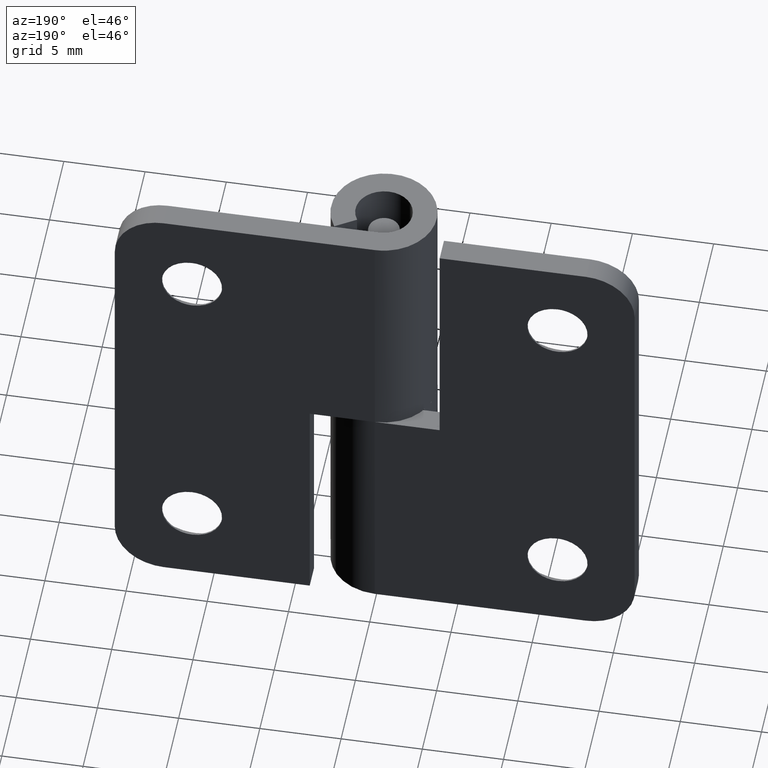
[diagram: clean part render]
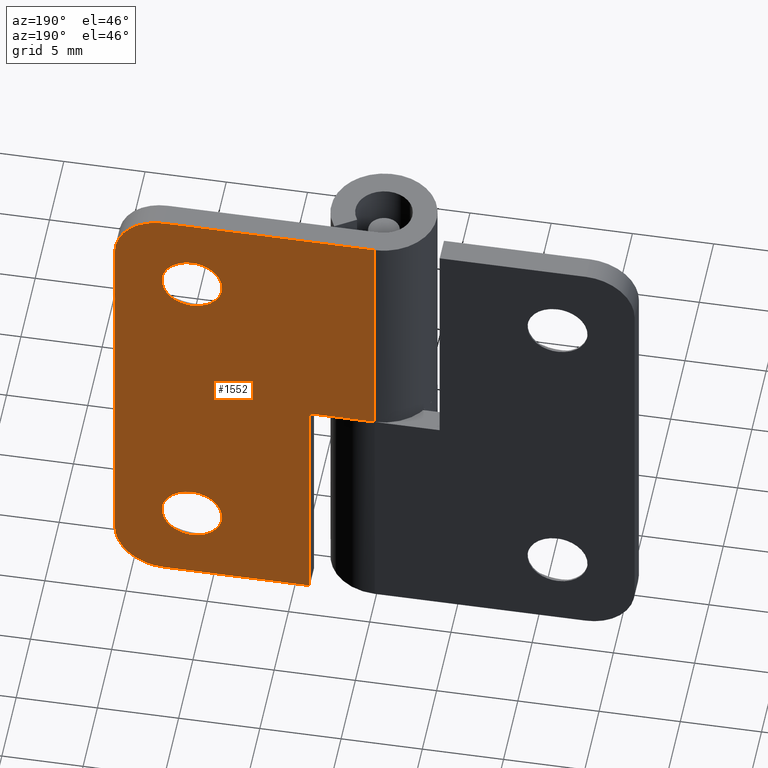
[diagram: same view with one face highlighted and labeled with its STEP entity id]
A machine part, auxiliary view. The second image highlights one B-rep face of the part: STEP entity #1552.
In plain terms, the highlighted face is a freeform B-spline surface patch.
Its self-contained STEP definition (entity closure, byte-faithful):
#472=CARTESIAN_POINT('',(13.087918004682640,3.250000000000000,24.788921742599229));
#473=VERTEX_POINT('',#472);
#479=CARTESIAN_POINT('',(11.250000000000000,3.250000000000000,23.150007999999801));
#480=VERTEX_POINT('',#479);
#481=CARTESIAN_POINT('',(13.087918004682642,3.250000000000000,24.788921742599232));
#482=CARTESIAN_POINT('',(12.899687510651761,3.250000000000000,23.150007999999804));
#483=CARTESIAN_POINT('',(11.250000000000000,3.250000000000000,23.150007999999801));
#491=(BOUNDED_CURVE()B_SPLINE_CURVE(2,(#481,#482,#483),.UNSPECIFIED.,.F.,.U.)B_SPLINE_CURVE_WITH_KNOTS((3,3),(0.269767760965133,0.500000000000000),.UNSPECIFIED.)CURVE()GEOMETRIC_REPRESENTATION_ITEM()RATIONAL_B_SPLINE_CURVE((0.957343726423063,0.730266153737798,1.0))REPRESENTATION_ITEM(''));
#492=EDGE_CURVE('',#473,#480,#491,.T.);
#494=CARTESIAN_POINT('',(9.403450622956065,3.250000000000000,24.887068201263229));
#495=VERTEX_POINT('',#494);
#496=CARTESIAN_POINT('',(11.250000000000000,3.250000000000000,23.150007999999801));
#497=CARTESIAN_POINT('',(9.509693777352041,3.250000000000000,23.150007999999804));
#498=CARTESIAN_POINT('',(9.403450622956065,3.249999999999999,24.887068201263226));
#506=(BOUNDED_CURVE()B_SPLINE_CURVE(2,(#496,#497,#498),.UNSPECIFIED.,.F.,.U.)B_SPLINE_CURVE_WITH_KNOTS((3,3),(0.500000000000000,0.739332962130381),.UNSPECIFIED.)CURVE()GEOMETRIC_REPRESENTATION_ITEM()RATIONAL_B_SPLINE_CURVE((1.0,0.719603993413899,0.976072041434048))REPRESENTATION_ITEM(''));
#507=EDGE_CURVE('',#480,#495,#506,.T.);
#606=CARTESIAN_POINT('',(11.250000000000000,3.250000000000000,26.850007999999800));
#607=VERTEX_POINT('',#606);
#608=CARTESIAN_POINT('',(9.403450622956065,3.250000000000000,24.887068201263226));
#609=CARTESIAN_POINT('',(9.399999999999999,3.250000000000000,24.943485387298654));
#610=CARTESIAN_POINT('',(9.399999999999999,3.250000000000000,25.000007999999799));
#611=CARTESIAN_POINT('',(9.400000000000000,3.250000000000000,26.850007999999800));
#612=CARTESIAN_POINT('',(11.250000000000000,3.250000000000000,26.850007999999800));
#620=(BOUNDED_CURVE()B_SPLINE_CURVE(2,(#608,#609,#610,#611,#612),.UNSPECIFIED.,.F.,.U.)B_SPLINE_CURVE_WITH_KNOTS((3,2,3),(0.739332962130382,0.750000000000000,1.0),.UNSPECIFIED.)CURVE()GEOMETRIC_REPRESENTATION_ITEM()RATIONAL_B_SPLINE_CURVE((0.976072041434050,0.987502787772650,1.0,0.707106781186548,1.0))REPRESENTATION_ITEM(''));
#621=EDGE_CURVE('',#495,#607,#620,.T.);
#623=CARTESIAN_POINT('',(11.250000000000000,3.250000000000000,26.850007999999800));
#624=CARTESIAN_POINT('',(13.100000000000001,3.250000000000000,26.850007999999800));
#625=CARTESIAN_POINT('',(13.100000000000000,3.250000000000000,25.000007999999799));
#626=CARTESIAN_POINT('',(13.100000000000005,3.250000000000000,24.894119087299348));
#627=CARTESIAN_POINT('',(13.087918004682642,3.250000000000000,24.788921742599232));
#635=(BOUNDED_CURVE()B_SPLINE_CURVE(2,(#623,#624,#625,#626,#627),.UNSPECIFIED.,.F.,.U.)B_SPLINE_CURVE_WITH_KNOTS((3,2,3),(0.0,0.250000000000000,0.269767760965133),.UNSPECIFIED.)CURVE()GEOMETRIC_REPRESENTATION_ITEM()RATIONAL_B_SPLINE_CURVE((1.0,0.707106781186548,1.0,0.976840627448749,0.957343726423063))REPRESENTATION_ITEM(''));
#636=EDGE_CURVE('',#607,#473,#635,.T.);
#804=CARTESIAN_POINT('',(13.087918004682640,3.250000000000000,4.788913742599432));
#805=VERTEX_POINT('',#804);
#811=CARTESIAN_POINT('',(11.250000000000000,3.250000000000000,3.150000000000000));
#812=VERTEX_POINT('',#811);
#813=CARTESIAN_POINT('',(13.087918004682646,3.250000000000000,4.788913742599433));
#814=CARTESIAN_POINT('',(12.899687510651759,3.250000000000000,3.150000000000000));
#815=CARTESIAN_POINT('',(11.250000000000000,3.250000000000000,3.150000000000000));
#823=(BOUNDED_CURVE()B_SPLINE_CURVE(2,(#813,#814,#815),.UNSPECIFIED.,.F.,.U.)B_SPLINE_CURVE_WITH_KNOTS((3,3),(0.269767760965133,0.500000000000000),.UNSPECIFIED.)CURVE()GEOMETRIC_REPRESENTATION_ITEM()RATIONAL_B_SPLINE_CURVE((0.957343726423063,0.730266153737799,1.0))REPRESENTATION_ITEM(''));
#824=EDGE_CURVE('',#805,#812,#823,.T.);
#826=CARTESIAN_POINT('',(9.403450622956065,3.250000000000000,4.887060201263431));
#827=VERTEX_POINT('',#826);
#828=CARTESIAN_POINT('',(11.250000000000000,3.250000000000000,3.150000000000000));
#829=CARTESIAN_POINT('',(9.509693777352041,3.250000000000000,3.149999999999999));
#830=CARTESIAN_POINT('',(9.403450622956065,3.249999999999999,4.887060201263431));
#838=(BOUNDED_CURVE()B_SPLINE_CURVE(2,(#828,#829,#830),.UNSPECIFIED.,.F.,.U.)B_SPLINE_CURVE_WITH_KNOTS((3,3),(0.500000000000000,0.739332962130381),.UNSPECIFIED.)CURVE()GEOMETRIC_REPRESENTATION_ITEM()RATIONAL_B_SPLINE_CURVE((1.0,0.719603993413899,0.976072041434048))REPRESENTATION_ITEM(''));
#839=EDGE_CURVE('',#812,#827,#838,.T.);
#938=CARTESIAN_POINT('',(11.250000000000000,3.250000000000000,6.850000000000001));
#939=VERTEX_POINT('',#938);
#940=CARTESIAN_POINT('',(9.403450622956065,3.250000000000000,4.887060201263431));
#941=CARTESIAN_POINT('',(9.399999999999999,3.250000000000000,4.943477387298851));
#942=CARTESIAN_POINT('',(9.399999999999999,3.250000000000000,5.0));
#943=CARTESIAN_POINT('',(9.400000000000000,3.250000000000000,6.850000000000001));
#944=CARTESIAN_POINT('',(11.250000000000000,3.250000000000000,6.850000000000001));
#952=(BOUNDED_CURVE()B_SPLINE_CURVE(2,(#940,#941,#942,#943,#944),.UNSPECIFIED.,.F.,.U.)B_SPLINE_CURVE_WITH_KNOTS((3,2,3),(0.739332962130382,0.750000000000000,1.0),.UNSPECIFIED.)CURVE()GEOMETRIC_REPRESENTATION_ITEM()RATIONAL_B_SPLINE_CURVE((0.976072041434051,0.987502787772650,1.0,0.707106781186548,1.0))REPRESENTATION_ITEM(''));
#953=EDGE_CURVE('',#827,#939,#952,.T.);
#955=CARTESIAN_POINT('',(11.250000000000000,3.250000000000000,6.850000000000001));
#956=CARTESIAN_POINT('',(13.100000000000001,3.250000000000000,6.850000000000001));
#957=CARTESIAN_POINT('',(13.100000000000000,3.250000000000000,5.0));
#958=CARTESIAN_POINT('',(13.099999999999994,3.250000000000000,4.894111087299554));
#959=CARTESIAN_POINT('',(13.087918004682642,3.250000000000000,4.788913742599432));
#967=(BOUNDED_CURVE()B_SPLINE_CURVE(2,(#955,#956,#957,#958,#959),.UNSPECIFIED.,.F.,.U.)B_SPLINE_CURVE_WITH_KNOTS((3,2,3),(0.0,0.250000000000000,0.269767760965133),.UNSPECIFIED.)CURVE()GEOMETRIC_REPRESENTATION_ITEM()RATIONAL_B_SPLINE_CURVE((1.0,0.707106781186548,1.0,0.976840627448749,0.957343726423063))REPRESENTATION_ITEM(''));
#968=EDGE_CURVE('',#939,#805,#967,.T.);
#1115=CARTESIAN_POINT('',(3.999999999999885,3.250000000000000,15.0));
#1116=VERTEX_POINT('',#1115);
#1122=CARTESIAN_POINT('',(3.999999999999885,3.250000000000000,0.0));
#1123=VERTEX_POINT('',#1122);
#1124=CARTESIAN_POINT('',(3.999999999999885,3.250000000000000,0.0));
#1125=CARTESIAN_POINT('',(3.999999999999885,3.250000000000000,15.0));
#1126=QUASI_UNIFORM_CURVE('',1,(#1124,#1125),.UNSPECIFIED.,.F.,.U.);
#1127=EDGE_CURVE('',#1123,#1116,#1126,.T.);
#1177=CARTESIAN_POINT('',(0.0,3.250000000000000,15.0));
#1178=VERTEX_POINT('',#1177);
#1198=CARTESIAN_POINT('',(3.999999999999885,3.250000000000000,15.0));
#1199=CARTESIAN_POINT('',(0.0,3.250000000000000,15.0));
#1200=QUASI_UNIFORM_CURVE('',1,(#1198,#1199),.UNSPECIFIED.,.F.,.U.);
#1201=EDGE_CURVE('',#1116,#1178,#1200,.T.);
#1238=CARTESIAN_POINT('',(16.0,3.250000000000000,27.000008000000001));
#1239=VERTEX_POINT('',#1238);
#1245=CARTESIAN_POINT('',(13.0,3.250000000000000,30.000008000000001));
#1246=VERTEX_POINT('',#1245);
#1247=CARTESIAN_POINT('',(16.0,3.250000000000000,27.000008000000001));
#1248=CARTESIAN_POINT('',(15.999999999999998,3.250000000000000,30.000008000000005));
#1249=CARTESIAN_POINT('',(13.0,3.250000000000000,30.000008000000001));
#1257=(BOUNDED_CURVE()B_SPLINE_CURVE(2,(#1247,#1248,#1249),.UNSPECIFIED.,.F.,.U.)CURVE()GEOMETRIC_REPRESENTATION_ITEM()QUASI_UNIFORM_CURVE()RATIONAL_B_SPLINE_CURVE((1.0,0.707106781186548,1.0))REPRESENTATION_ITEM(''));
#1258=EDGE_CURVE('',#1239,#1246,#1257,.T.);
#1299=CARTESIAN_POINT('',(13.0,3.250000000000000,0.0));
#1300=VERTEX_POINT('',#1299);
#1306=CARTESIAN_POINT('',(16.0,3.250000000000000,3.0));
#1307=VERTEX_POINT('',#1306);
#1308=CARTESIAN_POINT('',(13.0,3.250000000000000,0.0));
#1309=CARTESIAN_POINT('',(15.999999999999998,3.250000000000000,0.0));
#1310=CARTESIAN_POINT('',(16.0,3.250000000000000,3.0));
#1318=(BOUNDED_CURVE()B_SPLINE_CURVE(2,(#1308,#1309,#1310),.UNSPECIFIED.,.F.,.U.)CURVE()GEOMETRIC_REPRESENTATION_ITEM()QUASI_UNIFORM_CURVE()RATIONAL_B_SPLINE_CURVE((1.0,0.707106781186548,1.0))REPRESENTATION_ITEM(''));
#1319=EDGE_CURVE('',#1300,#1307,#1318,.T.);
#1342=CARTESIAN_POINT('',(0.0,3.250000000000000,30.000008000000001));
#1343=VERTEX_POINT('',#1342);
#1344=CARTESIAN_POINT('',(13.0,3.250000000000000,30.000008000000001));
#1345=CARTESIAN_POINT('',(0.0,3.250000000000000,30.000008000000001));
#1346=QUASI_UNIFORM_CURVE('',1,(#1344,#1345),.UNSPECIFIED.,.F.,.U.);
#1347=EDGE_CURVE('',#1246,#1343,#1346,.T.);
#1405=CARTESIAN_POINT('',(13.0,3.250000000000000,0.0));
#1406=CARTESIAN_POINT('',(3.999999999999885,3.250000000000000,0.0));
#1407=QUASI_UNIFORM_CURVE('',1,(#1405,#1406),.UNSPECIFIED.,.F.,.U.);
#1408=EDGE_CURVE('',#1300,#1123,#1407,.T.);
#1461=CARTESIAN_POINT('',(0.0,3.250000000000000,15.0));
#1462=CARTESIAN_POINT('',(0.0,3.250000000000000,30.000008000000001));
#1463=QUASI_UNIFORM_CURVE('',1,(#1461,#1462),.UNSPECIFIED.,.F.,.U.);
#1464=EDGE_CURVE('',#1178,#1343,#1463,.T.);
#1510=CARTESIAN_POINT('',(16.0,3.250000000000000,3.0));
#1511=CARTESIAN_POINT('',(16.0,3.250000000000000,27.000008000000001));
#1512=QUASI_UNIFORM_CURVE('',1,(#1510,#1511),.UNSPECIFIED.,.F.,.U.);
#1513=EDGE_CURVE('',#1307,#1239,#1512,.T.);
#1525=CARTESIAN_POINT('',(-0.799199968988895,3.250000000000000,-1.498500234273062));
#1526=CARTESIAN_POINT('',(-0.799199968988895,3.250000000000000,31.498506893168209));
#1527=CARTESIAN_POINT('',(16.799200398142339,3.250000000000000,-1.498500234273062));
#1528=CARTESIAN_POINT('',(16.799200398142339,3.250000000000000,31.498506893168209));
#1529=B_SPLINE_SURFACE_WITH_KNOTS('',1,1,((#1525,#1527),(#1526,#1528)),.UNSPECIFIED.,.F.,.F.,.U.,(2,2),(2,2),(0.0,32.997007127441272),(0.0,17.598400367131230),.UNSPECIFIED.);
#1530=ORIENTED_EDGE('',*,*,#1127,.T.);
#1531=ORIENTED_EDGE('',*,*,#1201,.T.);
#1532=ORIENTED_EDGE('',*,*,#1464,.T.);
#1533=ORIENTED_EDGE('',*,*,#1347,.F.);
#1534=ORIENTED_EDGE('',*,*,#1258,.F.);
#1535=ORIENTED_EDGE('',*,*,#1513,.F.);
#1536=ORIENTED_EDGE('',*,*,#1319,.F.);
#1537=ORIENTED_EDGE('',*,*,#1408,.T.);
#1538=EDGE_LOOP('',(#1530,#1531,#1532,#1533,#1534,#1535,#1536,#1537));
#1539=FACE_OUTER_BOUND('',#1538,.T.);
#1540=ORIENTED_EDGE('',*,*,#839,.F.);
#1541=ORIENTED_EDGE('',*,*,#824,.F.);
#1542=ORIENTED_EDGE('',*,*,#968,.F.);
#1543=ORIENTED_EDGE('',*,*,#953,.F.);
#1544=EDGE_LOOP('',(#1540,#1541,#1542,#1543));
#1545=FACE_BOUND('',#1544,.T.);
#1546=ORIENTED_EDGE('',*,*,#507,.F.);
#1547=ORIENTED_EDGE('',*,*,#492,.F.);
#1548=ORIENTED_EDGE('',*,*,#636,.F.);
#1549=ORIENTED_EDGE('',*,*,#621,.F.);
#1550=EDGE_LOOP('',(#1546,#1547,#1548,#1549));
#1551=FACE_BOUND('',#1550,.T.);
#1552=ADVANCED_FACE('',(#1539,#1545,#1551),#1529,.T.);